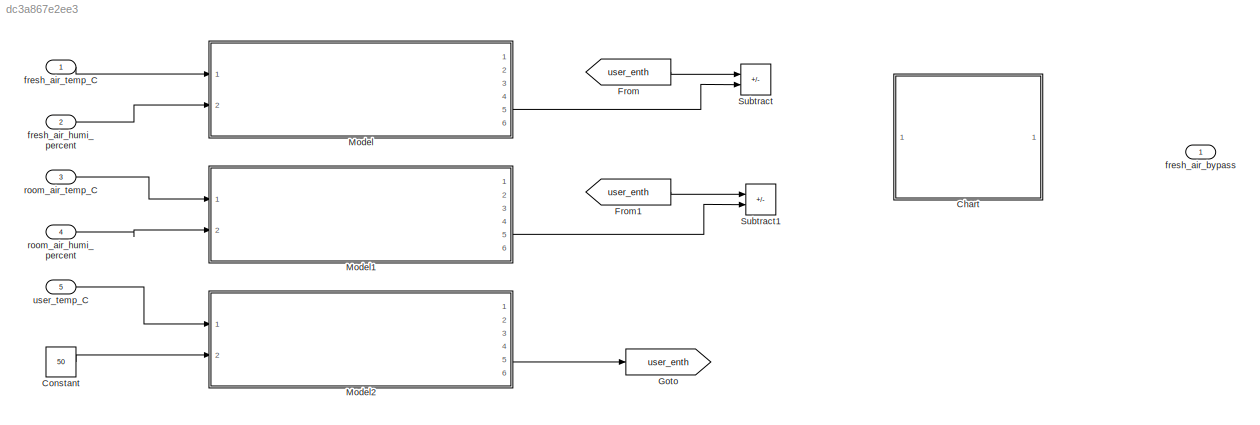
MODEL slx_dc3a867e2ee3
KIND model
CONFIG AbsTol = auto
CONFIG EnableMultiTasking = off
CONFIG FixedStep = auto
CONFIG MaxStep = auto
CONFIG MinStep = auto
CONFIG RelTol = 1e-3
CONFIG SampleTimeConstraint = Unconstrained
CONFIG SolverName = VariableStepAuto
CONFIG StartTime = 0.0
CONFIG StopTime = 10.0
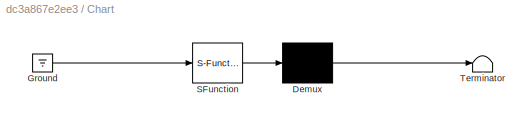
BLOCK [SubSystem] Chart
  ErrorFcn = Stateflow.Translate.translate
  PermitHierarchicalResolution = ExplicitOnly
  Ports = []
  RequestExecContextInheritance = off
  SFBlockType = Chart
  TreatAsAtomicUnit = on
BLOCK [Demux] Chart/ Demux 
  Outputs = 1
  Ports = [1, 1]
BLOCK [Ground] Chart/ Ground 
BLOCK [S-Function] Chart/ SFunction 
  EnableBusSupport = off
  FunctionName = sf_sfun
  PortCounts = [1 1]
  Ports = [1, 1]
  SFcnIsStateOwnerBlock = off
  SFunctionDeploymentMode = off
  Tag = Stateflow S-Function 3
BLOCK [Terminator] Chart/ Terminator 
BLOCK [Constant] Constant
  Value = 50
BLOCK [From] From
  GotoTag = user_enth
BLOCK [From] From1
  GotoTag = user_enth
BLOCK [Goto] Goto
  GotoTag = user_enth
BLOCK [ModelReference] Model
  ModelNameDialog = air_param_calculate.slx
  ModelReferenceVersion = 1.16
  Ports = [2, 6]
BLOCK [ModelReference] Model1
  ModelNameDialog = air_param_calculate.slx
  ModelReferenceVersion = 1.16
  Ports = [2, 6]
BLOCK [ModelReference] Model2
  ModelNameDialog = air_param_calculate.slx
  ModelReferenceVersion = 1.16
  Ports = [2, 6]
BLOCK [Sum] Subtract
  IconShape = rectangular
  Inputs = +-
  Ports = [2, 1]
BLOCK [Sum] Subtract1
  IconShape = rectangular
  Inputs = +-
  Ports = [2, 1]
BLOCK [Outport] fresh_air_bypass
BLOCK [Inport] fresh_air_humi_percent
  Port = 2
BLOCK [Inport] fresh_air_temp_C
BLOCK [Inport] room_air_humi_percent
  Port = 4
BLOCK [Inport] room_air_temp_C
  Port = 3
BLOCK [Inport] user_temp_C
  Port = 5
LINE Constant:1 -> Model2:2
LINE From1:1 -> Subtract1:1
LINE From:1 -> Subtract:1
LINE Model1:5 -> Subtract1:2
LINE Model2:5 -> Goto:1
LINE Model:5 -> Subtract:2
LINE fresh_air_humi_percent:1 -> Model:2
LINE fresh_air_temp_C:1 -> Model:1
LINE room_air_humi_percent:1 -> Model1:2
LINE room_air_temp_C:1 -> Model1:1
LINE user_temp_C:1 -> Model2:1
CHART Chart states=0 transitions=0
CHART  states=0 transitions=0
